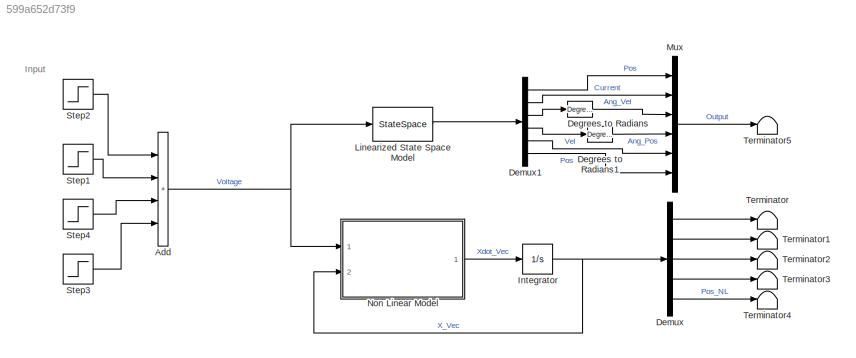
MODEL slx_599a652d73f9
KIND model
CONFIG AbsTol = auto
CONFIG EnableMultiTasking = on
CONFIG FixedStep = simPrm.dt
CONFIG MaxStep = 1/30
CONFIG MinStep = auto
CONFIG RelTol = 1e-3
CONFIG SampleTimeConstraint = Unconstrained
CONFIG Solver = ode3
CONFIG SolverName = ode3
CONFIG StartTime = 0.0
CONFIG StopTime = simPrm.tEnd
BLOCK [Sum] Add
  IconShape = rectangular
  Inputs = ++++
  Ports = [4, 1]
BLOCK [Reference] Degrees to Radians  REF=simulink_extras/Transformations/Degrees to
Radians
  Ports = [1, 1]
  SourceBlock = simulink_extras/Transformations/Degrees to\nRadians
  SourceProductBaseCode = SL
  SourceType = DegreesToRadians
BLOCK [Reference] Degrees to Radians1  REF=simulink_extras/Transformations/Degrees to
Radians
  Ports = [1, 1]
  SourceBlock = simulink_extras/Transformations/Degrees to\nRadians
  SourceProductBaseCode = SL
  SourceType = DegreesToRadians
BLOCK [Demux] Demux
  Outputs = 5
  Ports = [1, 5]
BLOCK [Demux] Demux1
  Outputs = 6
  Ports = [1, 6]
BLOCK [Integrator] Integrator
  InitialCondition = [0;0;0;0;0]
  Ports = [1, 1]
BLOCK [StateSpace] Linearized State Space Model
  A = A
  B = B
  C = C
  ContinuousStateAttributes = {'Current', 'Ang_Accl', 'Ang_Vel','Acc','Vel'}
  D = D
  InitialCondition = [0;0;0;0;0]
  Ports = [1, 1]
BLOCK [Mux] Mux
  DisplayOption = bar
  Inputs = 6
  Ports = [6, 1]
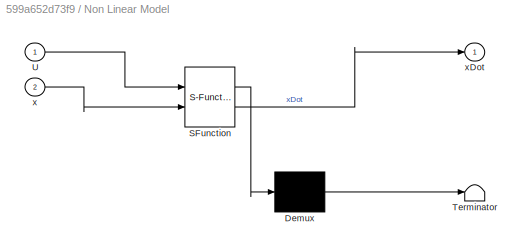
BLOCK [SubSystem] Non Linear Model
  ErrorFcn = Stateflow.Translate.translate
  PermitHierarchicalResolution = ExplicitOnly
  Ports = [2, 1]
  RequestExecContextInheritance = off
  SFBlockType = MATLAB Function
  TreatAsAtomicUnit = on
BLOCK [Demux] Non Linear Model/ Demux 
  Outputs = 1
  Ports = [1, 1]
BLOCK [S-Function] Non Linear Model/ SFunction 
  EnableBusSupport = on
  FunctionName = sf_sfun
  Parameters = Gear,Load,Motor,calc,g
  PortCounts = [2 2]
  Ports = [2, 2]
  SFcnIsStateOwnerBlock = off
  SFunctionDeploymentMode = off
  Tag = Stateflow S-Function 2
BLOCK [Terminator] Non Linear Model/ Terminator 
BLOCK [Inport] Non Linear Model/U
BLOCK [Inport] Non Linear Model/x
  Port = 2
BLOCK [Outport] Non Linear Model/xDot
  VectorParamsAs1DForOutWhenUnconnected = off
BLOCK [Step] Step1
  After = -200
  AttributesFormatString = %<After>
  SampleTime = 0
  Time = 5
BLOCK [Step] Step2
  After = 200
  AttributesFormatString = Amp = %<After>
  SampleTime = 0
  Time = 0
BLOCK [Step] Step3
  After = -200
  AttributesFormatString = %<After>
  SampleTime = 0
  Time = 15
BLOCK [Step] Step4
  After = 200
  AttributesFormatString = Amp = %<After>
  SampleTime = 0
  Time = 10
BLOCK [Terminator] Terminator
BLOCK [Terminator] Terminator1
BLOCK [Terminator] Terminator2
BLOCK [Terminator] Terminator3
BLOCK [Terminator] Terminator4
BLOCK [Terminator] Terminator5
ANNOTATION (root): Input
NET Add:1 -> Linearized State Space Model:1, Non Linear Model:1
LINE Degrees to Radians1:1 -> Mux:4
LINE Degrees to Radians:1 -> Mux:3
LINE Demux1:1 -> Mux:1
LINE Demux1:2 -> Mux:2
LINE Demux1:3 -> Degrees to Radians:1
LINE Demux1:4 -> Degrees to Radians1:1
LINE Demux1:5 -> Mux:5
LINE Demux1:6 -> Mux:6
LINE Demux:1 -> Terminator:1
LINE Demux:2 -> Terminator1:1
LINE Demux:3 -> Terminator2:1
LINE Demux:4 -> Terminator3:1
LINE Demux:5 -> Terminator4:1
NET Integrator:1 -> Demux:1, Non Linear Model:2
LINE Linearized State Space Model:1 -> Demux1:1
LINE Mux:1 -> Terminator5:1
LINE Non Linear Model:1 -> Integrator:1
LINE Step1:1 -> Add:2
LINE Step2:1 -> Add:1
LINE Step3:1 -> Add:4
LINE Step4:1 -> Add:3
note: NET lines group one-source signal fan-out (src -> all destinations, sorted); 1:1 wires keep LINE
CHART Non Linear Model states=1 transitions=1
  STATE_LABEL 'eML_blk_kernel()'
  STATE_LABEL "SCRIPT:\nfunction xDot = f(U,x,Motor,calc,Load,g, Gear)\n% Function f of x' = f(x)\n% x == states\n\n% grab memory\nxDot = zeros(5,1);\n\n% Create the xDot equations\n\nxDot(1) = U/Motor.La -(Motor.Ra/Motor.La)*x(1) -(Motor.Ke/Motor.La)*x(2) ;  % Armature current\nxDot(2) = (Motor.Ka*x(1)*calc.N^2 - x(3)*Load.K*Gear.Rw^2 + Load.K*calc.N*Gear.Rw*x(5))/Motor.Jm;  % Angular acceleration of motor shaft\nxDot(3) =...<+191ch>"
CHART  states=0 transitions=0
